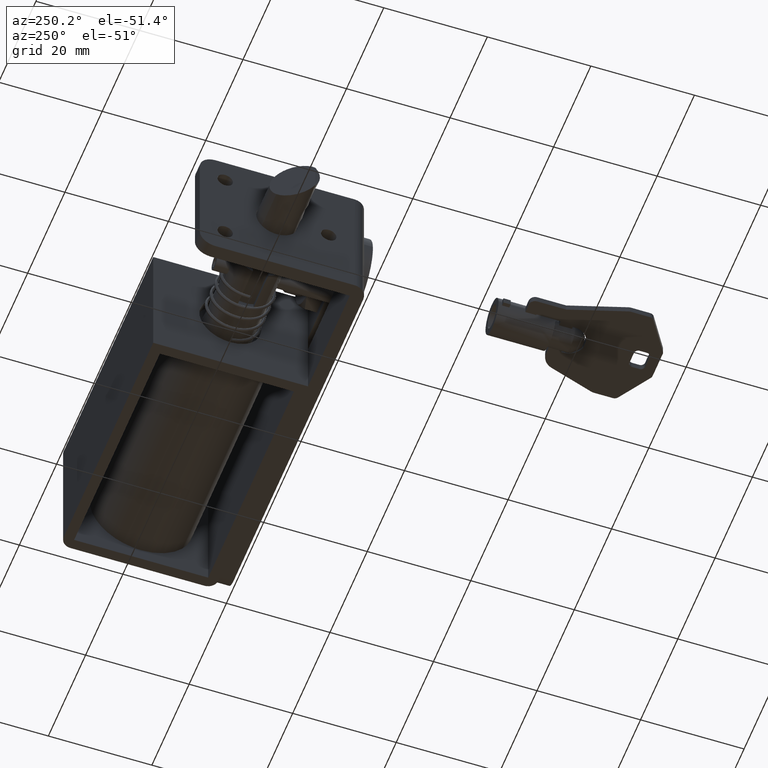
[diagram: clean part render]
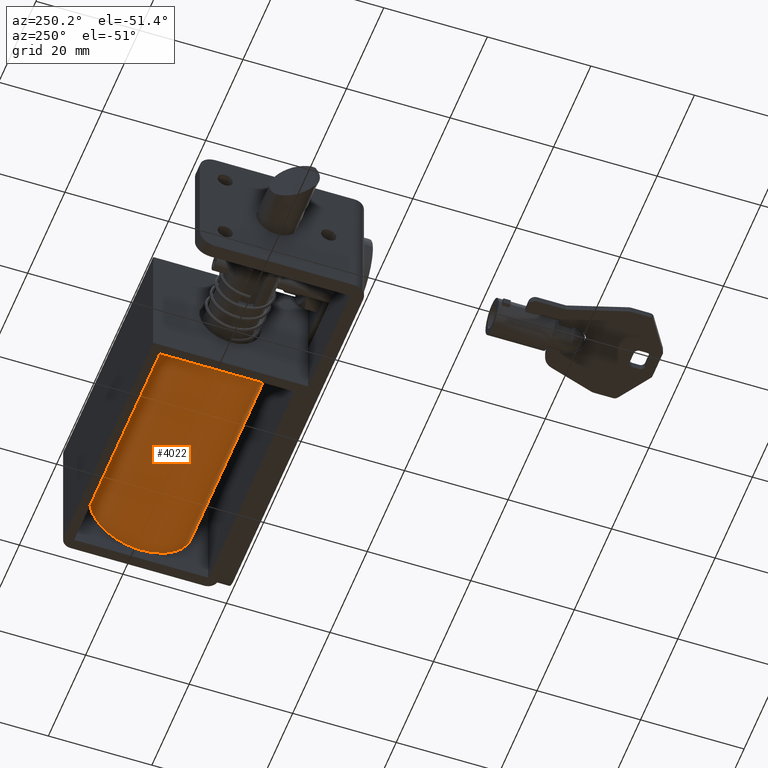
[diagram: same view with one face highlighted and labeled with its STEP entity id]
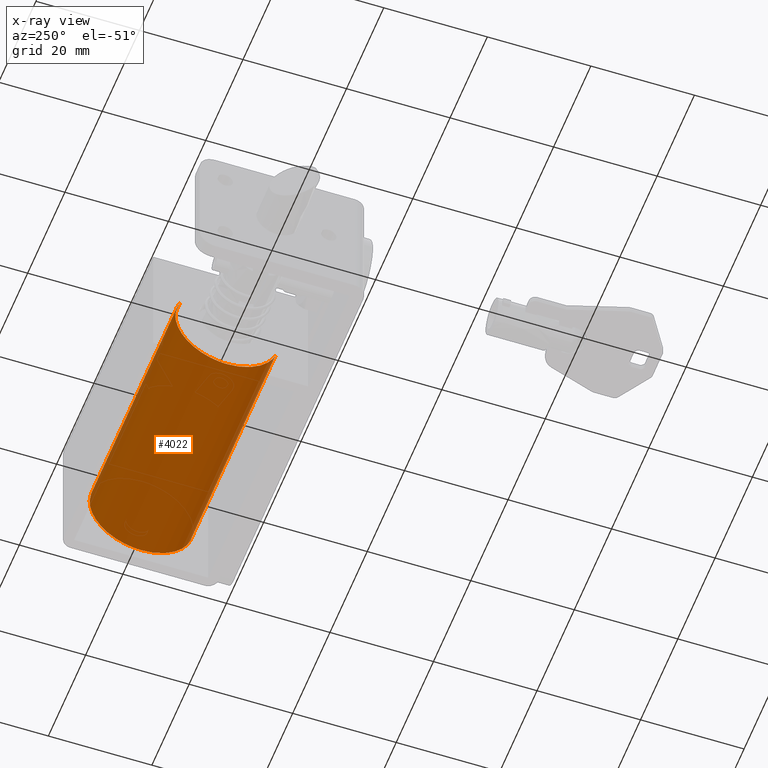
[diagram: x-ray of the same camera — body ghosted, the highlighted face saturated]
A machine part, auxiliary view. The second image highlights one B-rep face of the part: STEP entity #4022.
The next image is the same camera in x-ray: the body ghosted, the highlighted face saturated — about 3% of this face is hidden behind the body in this view.
In plain terms, the highlighted face is a freeform B-spline surface patch.
Its self-contained STEP definition (entity closure, byte-faithful):
#3920=CARTESIAN_POINT('',(58.150000000000006,26.432083732420107,-6.503570283320785));
#3921=CARTESIAN_POINT('',(58.150000000000006,26.692543151739088,-7.020968639092880));
#3922=CARTESIAN_POINT('',(58.150000000000013,26.891519521975511,-7.564980193892209));
#3923=CARTESIAN_POINT('',(58.150000000000013,30.326539328083303,-16.956499715867718));
#3924=CARTESIAN_POINT('',(58.150000000000013,20.935019806107789,-20.391519521975511));
#3925=CARTESIAN_POINT('',(58.150000000000013,11.543500284132280,-23.826539328083303));
#3926=CARTESIAN_POINT('',(58.150000000000013,8.108480478024490,-14.435019806107791));
#3927=CARTESIAN_POINT('',(9.821250000000207,26.432083732420107,-6.503570283320785));
#3928=CARTESIAN_POINT('',(9.821250000000207,26.692543151739088,-7.020968639092880));
#3929=CARTESIAN_POINT('',(9.821250000000205,26.891519521975511,-7.564980193892209));
#3930=CARTESIAN_POINT('',(9.821250000000205,30.326539328083303,-16.956499715867718));
#3931=CARTESIAN_POINT('',(9.821250000000205,20.935019806107789,-20.391519521975511));
#3932=CARTESIAN_POINT('',(9.821250000000205,11.543500284132280,-23.826539328083303));
#3933=CARTESIAN_POINT('',(9.821250000000205,8.108480478024490,-14.435019806107791));
#3941=(BOUNDED_SURFACE()B_SPLINE_SURFACE(2,1,((#3920,#3927),(#3921,#3928),(#3922,#3929),(#3923,#3930),(#3924,#3931),(#3925,#3932),(#3926,#3933)),.UNSPECIFIED.,.F.,.F.,.U.)B_SPLINE_SURFACE_WITH_KNOTS((3,2,2,3),(2,2),(0.0,1.325483399593906,17.894025894517700,34.462568389441493),(0.0,48.328749999999808),.UNSPECIFIED.)GEOMETRIC_REPRESENTATION_ITEM()RATIONAL_B_SPLINE_SURFACE(((0.956886118190660,0.956886118190660),(0.976568542494924,0.976568542494924),(1.0,1.0),(0.707106781186548,0.707106781186548),(1.0,1.0),(0.707106781186548,0.707106781186548),(1.0,1.0)))REPRESENTATION_ITEM('')SURFACE());
#3942=CARTESIAN_POINT('',(56.999999999999943,26.432090133933460,-6.503582999866900));
#3943=VERTEX_POINT('',#3942);
#3944=CARTESIAN_POINT('',(57.0,17.500000000000000,-21.0));
#3945=VERTEX_POINT('',#3944);
#3946=CARTESIAN_POINT('',(56.999999999999950,26.432090133933457,-6.503582999866900));
#3947=CARTESIAN_POINT('',(57.0,27.500000000000004,-8.624975917436483));
#3948=CARTESIAN_POINT('',(57.0,27.500000000000000,-11.0));
#3949=CARTESIAN_POINT('',(57.000000000000014,27.500000000000004,-21.000000000000004));
#3950=CARTESIAN_POINT('',(57.0,17.500000000000000,-21.0));
#3958=(BOUNDED_CURVE()B_SPLINE_CURVE(2,(#3946,#3947,#3948,#3949,#3950),.UNSPECIFIED.,.F.,.U.)B_SPLINE_CURVE_WITH_KNOTS((3,2,3),(0.173551018251342,0.250000000000000,0.500000000000000),.UNSPECIFIED.)CURVE()GEOMETRIC_REPRESENTATION_ITEM()RATIONAL_B_SPLINE_CURVE((0.875646456116485,0.910434446642498,1.0,0.707106781186548,1.0))REPRESENTATION_ITEM(''));
#3959=EDGE_CURVE('',#3943,#3945,#3958,.T.);
#3960=ORIENTED_EDGE('',*,*,#3959,.T.);
#3961=CARTESIAN_POINT('',(57.0,8.108479940217901,-14.435018335716411));
#3962=VERTEX_POINT('',#3961);
#3963=CARTESIAN_POINT('',(57.0,17.500000000000000,-21.0));
#3964=CARTESIAN_POINT('',(57.000000000000007,10.509670828051467,-20.999999999999996));
#3965=CARTESIAN_POINT('',(57.000000000000028,8.108479940217784,-14.435018335716451));
#3973=(BOUNDED_CURVE()B_SPLINE_CURVE(2,(#3963,#3964,#3965),.UNSPECIFIED.,.F.,.U.)B_SPLINE_CURVE_WITH_KNOTS((3,3),(0.500000000000000,0.691652643156856),.UNSPECIFIED.)CURVE()GEOMETRIC_REPRESENTATION_ITEM()RATIONAL_B_SPLINE_CURVE((1.0,0.775464961806730,0.895191792021986))REPRESENTATION_ITEM(''));
#3974=EDGE_CURVE('',#3945,#3962,#3973,.T.);
#3975=ORIENTED_EDGE('',*,*,#3974,.T.);
#3976=CARTESIAN_POINT('',(11.000000000000201,8.108479946689146,-14.435018353409140));
#3977=VERTEX_POINT('',#3976);
#3978=CARTESIAN_POINT('',(57.0,8.108479940217901,-14.435018335716411));
#3979=CARTESIAN_POINT('',(11.000000000000201,8.108479946689146,-14.435018353409140));
#3980=QUASI_UNIFORM_CURVE('',1,(#3978,#3979),.UNSPECIFIED.,.F.,.U.);
#3981=EDGE_CURVE('',#3962,#3977,#3980,.T.);
#3982=ORIENTED_EDGE('',*,*,#3981,.T.);
#3983=CARTESIAN_POINT('',(11.000000000000201,17.500000000000000,-21.0));
#3984=VERTEX_POINT('',#3983);
#3985=CARTESIAN_POINT('',(11.000000000000201,17.500000000000000,-21.0));
#3986=CARTESIAN_POINT('',(11.000000000000199,10.509670842073811,-20.999999999999996));
#3987=CARTESIAN_POINT('',(11.000000000000201,8.108479946689146,-14.435018353409138));
#3995=(BOUNDED_CURVE()B_SPLINE_CURVE(2,(#3985,#3986,#3987),.UNSPECIFIED.,.F.,.U.)B_SPLINE_CURVE_WITH_KNOTS((3,3),(0.500000000000000,0.691652642858730),.UNSPECIFIED.)CURVE()GEOMETRIC_REPRESENTATION_ITEM()RATIONAL_B_SPLINE_CURVE((1.0,0.775464962156006,0.895191791649503))REPRESENTATION_ITEM(''));
#3996=EDGE_CURVE('',#3984,#3977,#3995,.T.);
#3997=ORIENTED_EDGE('',*,*,#3996,.F.);
#3998=CARTESIAN_POINT('',(11.000000000000201,26.432090056832241,-6.503582846705523));
#3999=VERTEX_POINT('',#3998);
#4000=CARTESIAN_POINT('',(11.000000000000201,26.432090056832234,-6.503582846705523));
#4001=CARTESIAN_POINT('',(11.000000000000195,27.500000000000007,-8.624975826863789));
#4002=CARTESIAN_POINT('',(11.000000000000201,27.500000000000000,-11.0));
#4003=CARTESIAN_POINT('',(11.000000000000199,27.500000000000004,-21.000000000000004));
#4004=CARTESIAN_POINT('',(11.000000000000201,17.500000000000000,-21.0));
#4012=(BOUNDED_CURVE()B_SPLINE_CURVE(2,(#4000,#4001,#4002,#4003,#4004),.UNSPECIFIED.,.F.,.U.)B_SPLINE_CURVE_WITH_KNOTS((3,2,3),(0.173551015597044,0.250000000000000,0.500000000000000),.UNSPECIFIED.)CURVE()GEOMETRIC_REPRESENTATION_ITEM()RATIONAL_B_SPLINE_CURVE((0.875646453700817,0.910434443532795,1.0,0.707106781186548,1.0))REPRESENTATION_ITEM(''));
#4013=EDGE_CURVE('',#3999,#3984,#4012,.T.);
#4014=ORIENTED_EDGE('',*,*,#4013,.F.);
#4015=CARTESIAN_POINT('',(56.999999999999943,26.432090133933460,-6.503582999866900));
#4016=CARTESIAN_POINT('',(11.000000000000201,26.432090056832241,-6.503582846705523));
#4017=QUASI_UNIFORM_CURVE('',1,(#4015,#4016),.UNSPECIFIED.,.F.,.U.);
#4018=EDGE_CURVE('',#3943,#3999,#4017,.T.);
#4019=ORIENTED_EDGE('',*,*,#4018,.F.);
#4020=EDGE_LOOP('',(#3960,#3975,#3982,#3997,#4014,#4019));
#4021=FACE_OUTER_BOUND('',#4020,.T.);
#4022=ADVANCED_FACE('',(#4021),#3941,.T.);